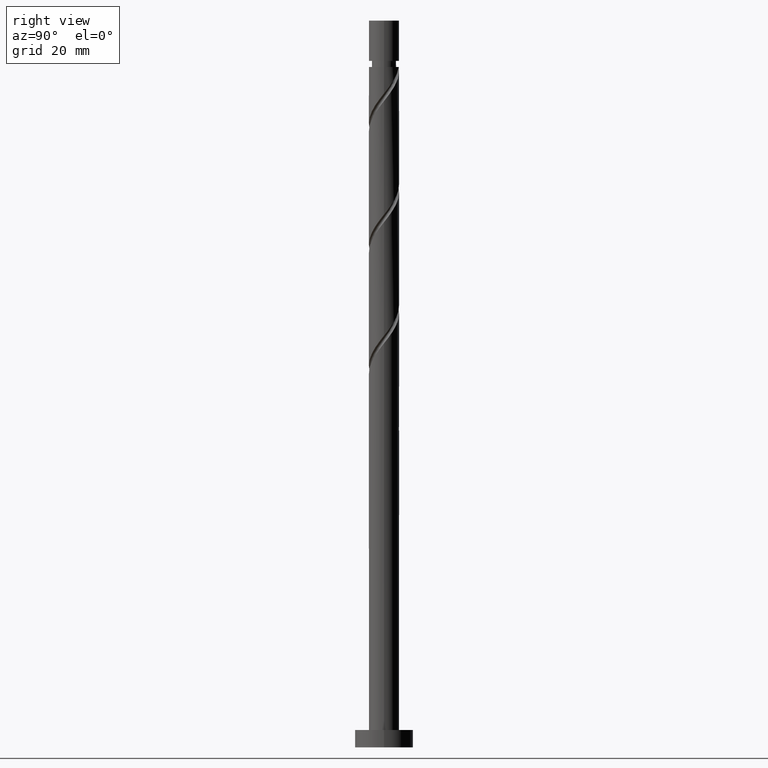
[diagram: clean part render]
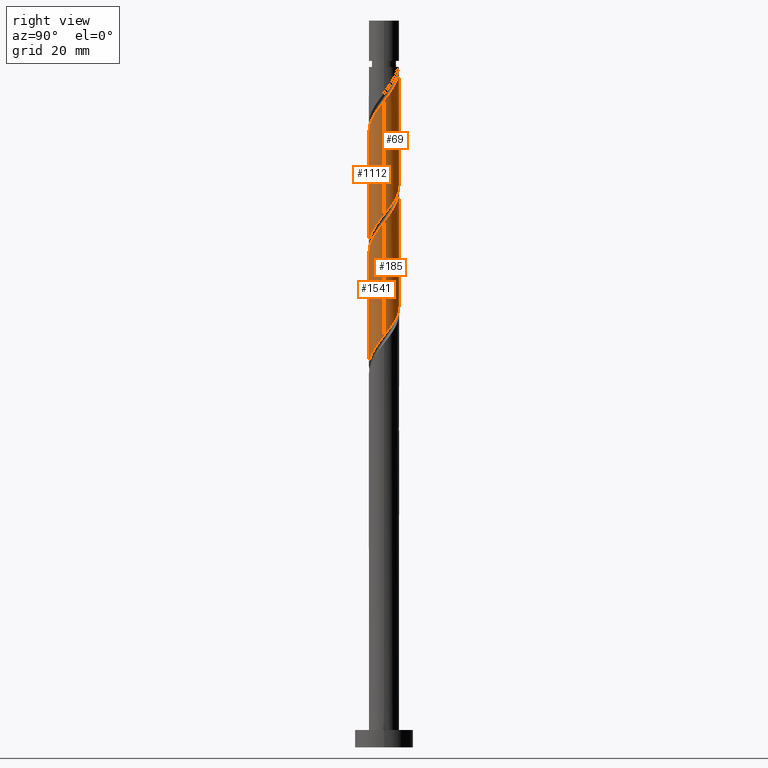
[diagram: same view with one multi-face feature highlighted, each face labeled with its STEP entity id]
A machine part, right view. The highlighted faces form ONE feature: a constant-radius fillet chain: 4 tangent blend faces with common blend radius 2.6 mm. The faces share edges in the B-rep.
Their STEP definitions:
[1] entity #1541 (Cylinder):
#6 = CARTESIAN_POINT ( 'NONE',  ( -0.9209570212423614510, -2.466052925254840211, 64.42336755237272428 ) ) ;
#29 = CARTESIAN_POINT ( 'NONE',  ( -0.1138299133485245890, -2.629947074745161206, 65.46503421903940989 ) ) ;
#85 = LINE ( 'NONE', #1428, #371 ) ;
#123 = CARTESIAN_POINT ( 'NONE',  ( -2.600000000000003197, -0.2613098319673984316, 80.23870301964363705 ) ) ;
#147 = CARTESIAN_POINT ( 'NONE',  ( 2.600000000000000533, -0.2613098319673972658, 70.48303208510179729 ) ) ;
#152 = CARTESIAN_POINT ( 'NONE',  ( -0.2953048731074930378, -2.583175377692926045, 84.73586755237273849 ) ) ;
#230 = EDGE_CURVE ( 'NONE', #615, #929, #1374, .T. ) ;
#232 = CARTESIAN_POINT ( 'NONE',  ( -2.600000000000000533, -0.1481317173607272497, 60.59018108305026118 ) ) ;
#234 = CARTESIAN_POINT ( 'NONE',  ( -2.600000000000004086, -2.578813678711384586E-15, 79.90439844423579530 ) ) ;
#240 = EDGE_LOOP ( 'NONE', ( #1517, #941, #571, #1574 ) ) ;
#254 = CARTESIAN_POINT ( 'NONE',  ( 2.194579422111510691, -1.453753770477755003, 88.38170088570608129 ) ) ;
#260 = CARTESIAN_POINT ( 'NONE',  ( 2.365491551376098567, -1.079096715020632313, 88.90253421903938147 ) ) ;
#265 = CARTESIAN_POINT ( 'NONE',  ( 1.079096715020629427, -2.365491551376095458, 67.02753421903936726 ) ) ;
#294 = CARTESIAN_POINT ( 'NONE',  ( 2.600000000000004086, 2.173999903564830327E-15, 90.32106511090246670 ) ) ;
#308 = EDGE_CURVE ( 'NONE', #1079, #357, #85, .T. ) ;
#321 = CARTESIAN_POINT ( 'NONE',  ( -2.600000000000000533, 3.268496406738868756E-15, 60.40066999384299606 ) ) ;
#357 = VERTEX_POINT ( 'NONE', #321 ) ;
#361 = CARTESIAN_POINT ( 'NONE',  ( 2.263408629347180678, -1.279445730227240396, 69.11086755237273849 ) ) ;
#364 = CARTESIAN_POINT ( 'NONE',  ( -2.060764333439525142, -1.637934439212121340, 82.13170088570605287 ) ) ;
#371 = VECTOR ( 'NONE', #693, 1000.000000000000000 ) ;
#388 = CARTESIAN_POINT ( 'NONE',  ( -2.536403680640683778, -0.7044396595635079583, 61.29836755237273138 ) ) ;
#409 = DIRECTION ( 'NONE',  ( -0.000000000000000000, -0.000000000000000000, -1.000000000000000000 ) ) ;
#481 = CARTESIAN_POINT ( 'NONE',  ( -0.7044396595635095126, -2.536403680640687330, 84.21503421903942410 ) ) ;
#489 = CARTESIAN_POINT ( 'NONE',  ( -1.637934439212119564, -2.060764333439522034, 63.38170088570605998 ) ) ;
#505 = CARTESIAN_POINT ( 'NONE',  ( -0.5173934672954428882, -2.548000000000000043, 64.94420088570603866 ) ) ;
#525 = CARTESIAN_POINT ( 'NONE',  ( -2.600000000000000533, 3.268496406738868756E-15, 60.40066999384299606 ) ) ;
#536 = FACE_OUTER_BOUND ( 'NONE', #240, .T. ) ;
#541 = CARTESIAN_POINT ( 'NONE',  ( 2.600000000000000089, 3.184081677783117698E-16, 125.0000000000000000 ) ) ;
#571 = ORIENTED_EDGE ( 'NONE', *, *, #308, .T. ) ;
#574 = EDGE_CURVE ( 'NONE', #929, #357, #918, .T. ) ;
#593 = CARTESIAN_POINT ( 'NONE',  ( 0.1138299133485235204, -2.629947074745163871, 85.25670088570603866 ) ) ;
#600 = CARTESIAN_POINT ( 'NONE',  ( -1.757259051958639962, -1.916256930661816238, 82.65253421903938147 ) ) ;
#615 = VERTEX_POINT ( 'NONE', #294 ) ;
#621 = VECTOR ( 'NONE', #409, 1000.000000000000000 ) ;
#693 = DIRECTION ( 'NONE',  ( -0.000000000000000000, -0.000000000000000000, -1.000000000000000000 ) ) ;
#708 = CARTESIAN_POINT ( 'NONE',  ( 0.9209570212423618951, -2.466052925254843764, 86.29836755237273849 ) ) ;
#718 = CARTESIAN_POINT ( 'NONE',  ( 0.2953048731074914834, -2.583175377692922048, 65.98586755237273849 ) ) ;
#723 = CARTESIAN_POINT ( 'NONE',  ( 0.5173934672954427771, -2.548000000000005372, 85.77753421903938147 ) ) ;
#824 = CARTESIAN_POINT ( 'NONE',  ( 1.916256930661816238, -1.757259051958639962, 87.86086755237275270 ) ) ;
#836 = CARTESIAN_POINT ( 'NONE',  ( 1.757259051958636631, -1.916256930661813795, 68.06920088570608129 ) ) ;
#842 = CARTESIAN_POINT ( 'NONE',  ( 1.279445730227241729, -2.263408629347185119, 86.81920088570608129 ) ) ;
#853 = CARTESIAN_POINT ( 'NONE',  ( 1.453753770477751894, -2.194579422111507583, 67.54836755237273849 ) ) ;
#856 = CARTESIAN_POINT ( 'NONE',  ( 1.637934439212120674, -2.060764333439525142, 87.34003421903938147 ) ) ;
#918 =( BOUNDED_CURVE ( )  B_SPLINE_CURVE ( 2, ( #1349, #147, #1450, #1085, #361, #1104, #836, #853, #265, #1329, #718, #29, #505, #6, #1204, #489, #1459, #979, #1478, #388, #1315, #232, #525 ),
 .UNSPECIFIED., .F., .T. ) 
 B_SPLINE_CURVE_WITH_KNOTS ( ( 3, 2, 2, 2, 2, 2, 2, 2, 2, 2, 2, 3 ),
 ( 0.8045322023138552492, 0.8125000000000000000, 0.8249999999999999556, 0.8375000000000000222, 0.8499999999999999778, 0.8625000000000000444, 0.8750000000000000000, 0.8874999999999999556, 0.9000000000000000222, 0.9124999999999999778, 0.9250000000000000444, 0.9295322023138551382 ),
 .UNSPECIFIED. ) 
 CURVE ( )  GEOMETRIC_REPRESENTATION_ITEM ( )  RATIONAL_B_SPLINE_CURVE ( ( 0.9039174447099340703, 0.9019565955404634794, 0.9090909090909118362, 0.8978984914501279002, 0.9090909090909118362, 0.8978984914501279002, 0.9090909090909118362, 0.8978984914501279002, 0.9090909090909118362, 0.8978984914501279002, 0.9090909090909118362, 0.8978984914501279002, 0.9090909090909118362, 0.8978984914501279002, 0.9090909090909118362, 0.8978984914501279002, 0.9090909090909118362, 0.8978984914501279002, 0.9090909090909118362, 0.8978984914501279002, 0.9090909090909118362, 0.9050328050005762570, 0.9039174447099340703 ) ) 
 REPRESENTATION_ITEM ( '' )  );
#929 = VERTEX_POINT ( 'NONE', #1068 ) ;
#941 = ORIENTED_EDGE ( 'NONE', *, *, #1328, .F. ) ;
#947 = CARTESIAN_POINT ( 'NONE',  ( -2.600000000000004086, -2.578813678711384586E-15, 79.90439844423579530 ) ) ;
#950 = CARTESIAN_POINT ( 'NONE',  ( 2.536403680640687330, -0.7044396595635097347, 89.42336755237273849 ) ) ;
#979 = CARTESIAN_POINT ( 'NONE',  ( -2.194579422111507583, -1.453753770477751894, 62.34003421903939568 ) ) ;
#983 = DIRECTION ( 'NONE',  ( -1.000000000000000000, 0.000000000000000000, 0.000000000000000000 ) ) ;
#1068 = CARTESIAN_POINT ( 'NONE',  ( 2.600000000000000533, 3.733282593018249783E-15, 70.81733666050965326 ) ) ;
#1076 = CARTESIAN_POINT ( 'NONE',  ( -2.548000000000005372, -0.5173934672954429992, 80.56920088570602445 ) ) ;
#1079 = VERTEX_POINT ( 'NONE', #947 ) ;
#1083 = CARTESIAN_POINT ( 'NONE',  ( -1.079096715020632313, -2.365491551376098567, 83.69420088570608129 ) ) ;
#1085 = CARTESIAN_POINT ( 'NONE',  ( 2.466052925254840211, -0.9209570212423616731, 69.63170088570605287 ) ) ;
#1104 = CARTESIAN_POINT ( 'NONE',  ( 2.060764333439522034, -1.637934439212119564, 68.59003421903939568 ) ) ;
#1191 = CARTESIAN_POINT ( 'NONE',  ( 2.583175377692926045, -0.2953048731074932043, 89.94420088570608129 ) ) ;
#1201 = CARTESIAN_POINT ( 'NONE',  ( -2.466052925254843764, -0.9209570212423618951, 81.09003421903940989 ) ) ;
#1204 = CARTESIAN_POINT ( 'NONE',  ( -1.279445730227240396, -2.263408629347180678, 63.90253421903939568 ) ) ;
#1210 = CARTESIAN_POINT ( 'NONE',  ( 2.600000000000003197, -0.1481317173607285820, 90.13155402169516606 ) ) ;
#1227 = CARTESIAN_POINT ( 'NONE',  ( -1.453753770477754337, -2.194579422111510691, 83.17336755237273849 ) ) ;
#1270 =( BOUNDED_CURVE ( )  B_SPLINE_CURVE ( 2, ( #234, #123, #1076, #1201, #1343, #364, #600, #1227, #1083, #481, #152, #593, #723, #708, #842, #856, #824, #254, #260, #950, #1191, #1210, #1447 ),
 .UNSPECIFIED., .F., .T. ) 
 B_SPLINE_CURVE_WITH_KNOTS ( ( 3, 2, 2, 2, 2, 2, 2, 2, 2, 2, 2, 3 ),
 ( 0.3045322023138553047, 0.3125000000000000000, 0.3249999999999999556, 0.3375000000000000222, 0.3499999999999999778, 0.3625000000000000444, 0.3750000000000000000, 0.3874999999999999556, 0.4000000000000000222, 0.4124999999999999778, 0.4250000000000000444, 0.4295322023138551382 ),
 .UNSPECIFIED. ) 
 CURVE ( )  GEOMETRIC_REPRESENTATION_ITEM ( )  RATIONAL_B_SPLINE_CURVE ( ( 0.9039174447099398435, 0.9019565955404693636, 0.9090909090909177204, 0.8978984914501337844, 0.9090909090909177204, 0.8978984914501337844, 0.9090909090909177204, 0.8978984914501337844, 0.9090909090909177204, 0.8978984914501337844, 0.9090909090909177204, 0.8978984914501337844, 0.9090909090909177204, 0.8978984914501337844, 0.9090909090909177204, 0.8978984914501337844, 0.9090909090909177204, 0.8978984914501337844, 0.9090909090909177204, 0.8978984914501337844, 0.9090909090909177204, 0.9050328050005822522, 0.9039174447099400656 ) ) 
 REPRESENTATION_ITEM ( '' )  );
#1271 = CYLINDRICAL_SURFACE ( 'NONE', #1406, 2.600000000000000089 ) ;
#1315 = CARTESIAN_POINT ( 'NONE',  ( -2.583175377692922048, -0.2953048731074915945, 60.77753421903939568 ) ) ;
#1328 = EDGE_CURVE ( 'NONE', #1079, #615, #1270, .T. ) ;
#1329 = CARTESIAN_POINT ( 'NONE',  ( 0.7044396595635075142, -2.536403680640683778, 66.50670088570605287 ) ) ;
#1343 = CARTESIAN_POINT ( 'NONE',  ( -2.263408629347185119, -1.279445730227241729, 81.61086755237273849 ) ) ;
#1349 = CARTESIAN_POINT ( 'NONE',  ( 2.600000000000000533, 3.733282593018249783E-15, 70.81733666050965326 ) ) ;
#1368 = DIRECTION ( 'NONE',  ( -0.000000000000000000, -0.000000000000000000, -1.000000000000000000 ) ) ;
#1374 = LINE ( 'NONE', #541, #621 ) ;
#1406 = AXIS2_PLACEMENT_3D ( 'NONE', #1514, #1368, #983 ) ;
#1428 = CARTESIAN_POINT ( 'NONE',  ( -2.600000000000000089, 0.000000000000000000, 125.0000000000000000 ) ) ;
#1447 = CARTESIAN_POINT ( 'NONE',  ( 2.600000000000004086, 2.173999903564830327E-15, 90.32106511090246670 ) ) ;
#1450 = CARTESIAN_POINT ( 'NONE',  ( 2.548000000000000043, -0.5173934672954429992, 70.15253421903938147 ) ) ;
#1459 = CARTESIAN_POINT ( 'NONE',  ( -1.916256930661813795, -1.757259051958636631, 62.86086755237271717 ) ) ;
#1478 = CARTESIAN_POINT ( 'NONE',  ( -2.365491551376095458, -1.079096715020629427, 61.81920088570605287 ) ) ;
#1514 = CARTESIAN_POINT ( 'NONE',  ( 0.000000000000000000, 0.000000000000000000, 125.0000000000000000 ) ) ;
#1517 = ORIENTED_EDGE ( 'NONE', *, *, #230, .F. ) ;
#1541 = ADVANCED_FACE ( 'NONE', ( #536 ), #1271, .T. ) ;
#1574 = ORIENTED_EDGE ( 'NONE', *, *, #574, .F. ) ;
[2] entity #185 (Cylinder):
#19 = CARTESIAN_POINT ( 'NONE',  ( 0.2953048731074934263, 2.583175377692926045, 95.15253421903938147 ) ) ;
#66 = CARTESIAN_POINT ( 'NONE',  ( 2.536403680640684222, 0.7044396595635074032, 71.71503421903938147 ) ) ;
#115 = CARTESIAN_POINT ( 'NONE',  ( 0.7044396595635097347, 2.536403680640687330, 94.63170088570606708 ) ) ;
#117 = VECTOR ( 'NONE', #1493, 1000.000000000000000 ) ;
#119 = CARTESIAN_POINT ( 'NONE',  ( -2.600000000000003642, -1.229434428222869075E-15, 100.7377317775691239 ) ) ;
#125 = CARTESIAN_POINT ( 'NONE',  ( 2.060764333439525586, 1.637934439212120674, 92.54836755237273849 ) ) ;
#137 = CARTESIAN_POINT ( 'NONE',  ( -2.583175377692926045, 0.2953048731074928157, 100.3608675523727527 ) ) ;
#155 = CARTESIAN_POINT ( 'NONE',  ( -2.600000000000000533, 3.268496406738868756E-15, 81.23400332717629624 ) ) ;
#183 = CARTESIAN_POINT ( 'NONE',  ( 0.1138299133485242420, 2.629947074745161206, 75.88170088570606708 ) ) ;
#185 = ADVANCED_FACE ( 'NONE', ( #1130 ), #1276, .T. ) ;
#190 = CARTESIAN_POINT ( 'NONE',  ( -0.7044396595635079583, 2.536403680640683778, 76.92336755237273849 ) ) ;
#230 = EDGE_CURVE ( 'NONE', #615, #929, #1374, .T. ) ;
#238 = CARTESIAN_POINT ( 'NONE',  ( -0.5173934672954424441, 2.548000000000005372, 96.19420088570606708 ) ) ;
#246 = CARTESIAN_POINT ( 'NONE',  ( 2.548000000000005372, 0.5173934672954426661, 90.98586755237272428 ) ) ;
#279 = EDGE_CURVE ( 'NONE', #1151, #929, #985, .T. ) ;
#291 = CARTESIAN_POINT ( 'NONE',  ( -2.600000000000000533, 0.2613098319673969328, 80.89969875176844027 ) ) ;
#294 = CARTESIAN_POINT ( 'NONE',  ( 2.600000000000004086, 2.173999903564830327E-15, 90.32106511090246670 ) ) ;
#298 = CARTESIAN_POINT ( 'NONE',  ( -2.060764333439522034, 1.637934439212118898, 79.00670088570608129 ) ) ;
#317 = CARTESIAN_POINT ( 'NONE',  ( 2.600000000000000533, 3.733282593018249783E-15, 70.81733666050965326 ) ) ;
#392 = ORIENTED_EDGE ( 'NONE', *, *, #230, .T. ) ;
#400 = CARTESIAN_POINT ( 'NONE',  ( -2.466052925254841544, 0.9209570212423614510, 80.04836755237272428 ) ) ;
#409 = DIRECTION ( 'NONE',  ( -0.000000000000000000, -0.000000000000000000, -1.000000000000000000 ) ) ;
#419 = CARTESIAN_POINT ( 'NONE',  ( -2.548000000000000043, 0.5173934672954427771, 80.56920088570602445 ) ) ;
#440 = VERTEX_POINT ( 'NONE', #1544 ) ;
#498 = CARTESIAN_POINT ( 'NONE',  ( -1.279445730227241729, 2.263408629347184675, 97.23586755237275270 ) ) ;
#507 = EDGE_CURVE ( 'NONE', #615, #440, #769, .T. ) ;
#541 = CARTESIAN_POINT ( 'NONE',  ( 2.600000000000000089, 3.184081677783117698E-16, 125.0000000000000000 ) ) ;
#547 = CARTESIAN_POINT ( 'NONE',  ( 2.194579422111507583, 1.453753770477751672, 72.75670088570606708 ) ) ;
#590 = CARTESIAN_POINT ( 'NONE',  ( 2.600000000000004530, 0.2613098319673927694, 90.65536968631029424 ) ) ;
#603 = CARTESIAN_POINT ( 'NONE',  ( 2.600000000000004086, 2.173999903564830327E-15, 90.32106511090246670 ) ) ;
#610 = CARTESIAN_POINT ( 'NONE',  ( -0.1138299133485232428, 2.629947074745163871, 95.67336755237272428 ) ) ;
#615 = VERTEX_POINT ( 'NONE', #294 ) ;
#621 = VECTOR ( 'NONE', #409, 1000.000000000000000 ) ;
#637 = CARTESIAN_POINT ( 'NONE',  ( -2.600000000000000089, 0.000000000000000000, 125.0000000000000000 ) ) ;
#647 = CARTESIAN_POINT ( 'NONE',  ( 1.916256930661814017, 1.757259051958636187, 73.27753421903940989 ) ) ;
#656 = CARTESIAN_POINT ( 'NONE',  ( 0.5173934672954432212, 2.548000000000000043, 75.36086755237273849 ) ) ;
#663 = CARTESIAN_POINT ( 'NONE',  ( 2.365491551376095458, 1.079096715020629205, 72.23586755237272428 ) ) ;
#706 = CARTESIAN_POINT ( 'NONE',  ( 2.263408629347185119, 1.279445730227241729, 92.02753421903942410 ) ) ;
#726 = CARTESIAN_POINT ( 'NONE',  ( -0.9209570212423621172, 2.466052925254843764, 96.71503421903942410 ) ) ;
#765 = CARTESIAN_POINT ( 'NONE',  ( -0.2953048731074917610, 2.583175377692921604, 76.40253421903940989 ) ) ;
#769 =( BOUNDED_CURVE ( )  B_SPLINE_CURVE ( 2, ( #603, #590, #246, #1222, #706, #125, #1215, #829, #1189, #115, #19, #610, #238, #726, #498, #1093, #971, #1444, #1469, #1194, #137, #1073, #119 ),
 .UNSPECIFIED., .F., .T. ) 
 B_SPLINE_CURVE_WITH_KNOTS ( ( 3, 2, 2, 2, 2, 2, 2, 2, 2, 2, 2, 3 ),
 ( 0.4295322023138551382, 0.4375000000000000000, 0.4499999999999999556, 0.4625000000000000222, 0.4749999999999999778, 0.4875000000000000444, 0.5000000000000000000, 0.5124999999999999556, 0.5250000000000000222, 0.5374999999999999778, 0.5500000000000000444, 0.5545322023138552492 ),
 .UNSPECIFIED. ) 
 CURVE ( )  GEOMETRIC_REPRESENTATION_ITEM ( )  RATIONAL_B_SPLINE_CURVE ( ( 0.9039174447099400656, 0.9019565955404691415, 0.9090909090909177204, 0.8978984914501337844, 0.9090909090909177204, 0.8978984914501337844, 0.9090909090909177204, 0.8978984914501337844, 0.9090909090909177204, 0.8978984914501337844, 0.9090909090909177204, 0.8978984914501337844, 0.9090909090909177204, 0.8978984914501337844, 0.9090909090909177204, 0.8978984914501337844, 0.9090909090909177204, 0.8978984914501337844, 0.9090909090909177204, 0.8978984914501337844, 0.9090909090909177204, 0.9050328050005820302, 0.9039174447099398435 ) ) 
 REPRESENTATION_ITEM ( '' )  );
#774 = CARTESIAN_POINT ( 'NONE',  ( -1.079096715020630093, 2.365491551376095458, 77.44420088570605287 ) ) ;
#829 = CARTESIAN_POINT ( 'NONE',  ( 1.453753770477755003, 2.194579422111510247, 93.59003421903936726 ) ) ;
#870 = CARTESIAN_POINT ( 'NONE',  ( -2.263408629347180678, 1.279445730227240174, 79.52753421903938147 ) ) ;
#891 = CARTESIAN_POINT ( 'NONE',  ( 2.583175377692922048, 0.2953048731074913169, 71.19420088570606708 ) ) ;
#901 = CARTESIAN_POINT ( 'NONE',  ( 1.279445730227240841, 2.263408629347180678, 74.31920088570606708 ) ) ;
#929 = VERTEX_POINT ( 'NONE', #1068 ) ;
#971 = CARTESIAN_POINT ( 'NONE',  ( -1.916256930661816238, 1.757259051958639962, 98.27753421903939568 ) ) ;
#976 = ORIENTED_EDGE ( 'NONE', *, *, #507, .F. ) ;
#984 = EDGE_LOOP ( 'NONE', ( #976, #392, #1412, #1463 ) ) ;
#985 =( BOUNDED_CURVE ( )  B_SPLINE_CURVE ( 2, ( #1005, #291, #419, #400, #870, #298, #1261, #1395, #774, #190, #765, #183, #656, #1253, #901, #1136, #647, #547, #663, #66, #891, #1523, #317 ),
 .UNSPECIFIED., .F., .T. ) 
 B_SPLINE_CURVE_WITH_KNOTS ( ( 3, 2, 2, 2, 2, 2, 2, 2, 2, 2, 2, 3 ),
 ( 0.6795322023138552492, 0.6875000000000000000, 0.6999999999999999556, 0.7125000000000000222, 0.7249999999999999778, 0.7375000000000000444, 0.7500000000000000000, 0.7624999999999999556, 0.7750000000000000222, 0.7874999999999999778, 0.8000000000000000444, 0.8045322023138552492 ),
 .UNSPECIFIED. ) 
 CURVE ( )  GEOMETRIC_REPRESENTATION_ITEM ( )  RATIONAL_B_SPLINE_CURVE ( ( 0.9039174447099340703, 0.9019565955404634794, 0.9090909090909118362, 0.8978984914501279002, 0.9090909090909118362, 0.8978984914501279002, 0.9090909090909118362, 0.8978984914501279002, 0.9090909090909118362, 0.8978984914501279002, 0.9090909090909118362, 0.8978984914501279002, 0.9090909090909118362, 0.8978984914501279002, 0.9090909090909118362, 0.8978984914501279002, 0.9090909090909118362, 0.8978984914501279002, 0.9090909090909118362, 0.8978984914501279002, 0.9090909090909118362, 0.9050328050005761460, 0.9039174447099340703 ) ) 
 REPRESENTATION_ITEM ( '' )  );
#993 = DIRECTION ( 'NONE',  ( -0.000000000000000000, -0.000000000000000000, -1.000000000000000000 ) ) ;
#1005 = CARTESIAN_POINT ( 'NONE',  ( -2.600000000000000533, 3.268496406738868756E-15, 81.23400332717629624 ) ) ;
#1068 = CARTESIAN_POINT ( 'NONE',  ( 2.600000000000000533, 3.733282593018249783E-15, 70.81733666050965326 ) ) ;
#1073 = CARTESIAN_POINT ( 'NONE',  ( -2.600000000000004086, 0.1481317173607245297, 100.5482206883618659 ) ) ;
#1093 = CARTESIAN_POINT ( 'NONE',  ( -1.637934439212121340, 2.060764333439525142, 97.75670088570605287 ) ) ;
#1130 = FACE_OUTER_BOUND ( 'NONE', #984, .T. ) ;
#1136 = CARTESIAN_POINT ( 'NONE',  ( 1.637934439212119564, 2.060764333439522034, 73.79836755237273849 ) ) ;
#1151 = VERTEX_POINT ( 'NONE', #155 ) ;
#1189 = CARTESIAN_POINT ( 'NONE',  ( 1.079096715020632313, 2.365491551376098567, 94.11086755237275270 ) ) ;
#1194 = CARTESIAN_POINT ( 'NONE',  ( -2.536403680640687330, 0.7044396595635091796, 99.84003421903943831 ) ) ;
#1215 = CARTESIAN_POINT ( 'NONE',  ( 1.757259051958640184, 1.916256930661815572, 93.06920088570606708 ) ) ;
#1222 = CARTESIAN_POINT ( 'NONE',  ( 2.466052925254843764, 0.9209570212423618951, 91.50670088570608129 ) ) ;
#1253 = CARTESIAN_POINT ( 'NONE',  ( 0.9209570212423616731, 2.466052925254840211, 74.84003421903938147 ) ) ;
#1261 = CARTESIAN_POINT ( 'NONE',  ( -1.757259051958636853, 1.916256930661813573, 78.48586755237273849 ) ) ;
#1263 = LINE ( 'NONE', #637, #117 ) ;
#1269 = DIRECTION ( 'NONE',  ( -1.000000000000000000, 0.000000000000000000, 0.000000000000000000 ) ) ;
#1276 = CYLINDRICAL_SURFACE ( 'NONE', #1287, 2.600000000000000089 ) ;
#1287 = AXIS2_PLACEMENT_3D ( 'NONE', #1367, #993, #1269 ) ;
#1367 = CARTESIAN_POINT ( 'NONE',  ( 0.000000000000000000, 0.000000000000000000, 125.0000000000000000 ) ) ;
#1374 = LINE ( 'NONE', #541, #621 ) ;
#1395 = CARTESIAN_POINT ( 'NONE',  ( -1.453753770477752338, 2.194579422111507583, 77.96503421903940989 ) ) ;
#1412 = ORIENTED_EDGE ( 'NONE', *, *, #279, .F. ) ;
#1444 = CARTESIAN_POINT ( 'NONE',  ( -2.194579422111511580, 1.453753770477754337, 98.79836755237273849 ) ) ;
#1448 = EDGE_CURVE ( 'NONE', #440, #1151, #1263, .T. ) ;
#1463 = ORIENTED_EDGE ( 'NONE', *, *, #1448, .F. ) ;
#1469 = CARTESIAN_POINT ( 'NONE',  ( -2.365491551376098567, 1.079096715020631869, 99.31920088570606708 ) ) ;
#1493 = DIRECTION ( 'NONE',  ( -0.000000000000000000, -0.000000000000000000, -1.000000000000000000 ) ) ;
#1523 = CARTESIAN_POINT ( 'NONE',  ( 2.600000000000000533, 0.1481317173607233639, 71.00684774971692548 ) ) ;
#1544 = CARTESIAN_POINT ( 'NONE',  ( -2.600000000000003642, -1.229434428222869075E-15, 100.7377317775691239 ) ) ;
[3] entity #1112 (Cylinder):
#13 = CARTESIAN_POINT ( 'NONE',  ( 0.9209570212423618951, -2.466052925254843764, 107.1317008857060813 ) ) ;
#18 = AXIS2_PLACEMENT_3D ( 'NONE', #1193, #504, #1231 ) ;
#25 = CARTESIAN_POINT ( 'NONE',  ( 2.536403680640687330, -0.7044396595635097347, 110.2567008857060671 ) ) ;
#27 = FACE_OUTER_BOUND ( 'NONE', #1325, .T. ) ;
#67 = CARTESIAN_POINT ( 'NONE',  ( -1.279445730227240396, -2.263408629347180678, 84.73586755237272428 ) ) ;
#73 = CARTESIAN_POINT ( 'NONE',  ( 0.2953048731074914834, -2.583175377692922048, 86.81920088570606708 ) ) ;
#117 = VECTOR ( 'NONE', #1493, 1000.000000000000000 ) ;
#141 = ORIENTED_EDGE ( 'NONE', *, *, #825, .F. ) ;
#142 = CARTESIAN_POINT ( 'NONE',  ( 2.194579422111510691, -1.453753770477755003, 109.2150342190393815 ) ) ;
#155 = CARTESIAN_POINT ( 'NONE',  ( -2.600000000000000533, 3.268496406738868756E-15, 81.23400332717629624 ) ) ;
#161 = CARTESIAN_POINT ( 'NONE',  ( 2.263408629347180678, -1.279445730227240396, 89.94420088570606708 ) ) ;
#177 = CARTESIAN_POINT ( 'NONE',  ( 2.466052925254840211, -0.9209570212423616731, 90.46503421903942410 ) ) ;
#193 = CARTESIAN_POINT ( 'NONE',  ( 2.060764333439522034, -1.637934439212119564, 89.42336755237273849 ) ) ;
#242 = CARTESIAN_POINT ( 'NONE',  ( -2.466052925254843764, -0.9209570212423618951, 101.9233675523727243 ) ) ;
#276 = CARTESIAN_POINT ( 'NONE',  ( -1.637934439212119564, -2.060764333439522034, 84.21503421903942410 ) ) ;
#303 = CARTESIAN_POINT ( 'NONE',  ( 1.757259051958636631, -1.916256930661813795, 88.90253421903940989 ) ) ;
#330 = ORIENTED_EDGE ( 'NONE', *, *, #1382, .F. ) ;
#353 = CARTESIAN_POINT ( 'NONE',  ( -1.757259051958639962, -1.916256930661816238, 103.4858675523727527 ) ) ;
#422 = CARTESIAN_POINT ( 'NONE',  ( 2.600000000000000533, 3.733282593018249783E-15, 91.65066999384299606 ) ) ;
#424 = CARTESIAN_POINT ( 'NONE',  ( -2.600000000000000533, -0.1481317173607236137, 81.42351441638359688 ) ) ;
#430 = CARTESIAN_POINT ( 'NONE',  ( -2.365491551376095458, -1.079096715020629427, 82.65253421903939568 ) ) ;
#440 = VERTEX_POINT ( 'NONE', #1544 ) ;
#453 =( BOUNDED_CURVE ( )  B_SPLINE_CURVE ( 2, ( #885, #1022, #1116, #177, #161, #193, #303, #1264, #1369, #1030, #73, #659, #1139, #751, #67, #276, #544, #552, #430, #1516, #1125, #424, #897 ),
 .UNSPECIFIED., .F., .T. ) 
 B_SPLINE_CURVE_WITH_KNOTS ( ( 3, 2, 2, 2, 2, 2, 2, 2, 2, 2, 2, 3 ),
 ( 0.5545322023138550271, 0.5625000000000000000, 0.5749999999999999556, 0.5875000000000000222, 0.5999999999999999778, 0.6125000000000000444, 0.6250000000000000000, 0.6374999999999999556, 0.6500000000000000222, 0.6624999999999999778, 0.6750000000000000444, 0.6795322023138552492 ),
 .UNSPECIFIED. ) 
 CURVE ( )  GEOMETRIC_REPRESENTATION_ITEM ( )  RATIONAL_B_SPLINE_CURVE ( ( 0.9039174447099341814, 0.9019565955404631463, 0.9090909090909118362, 0.8978984914501279002, 0.9090909090909118362, 0.8978984914501279002, 0.9090909090909118362, 0.8978984914501279002, 0.9090909090909118362, 0.8978984914501279002, 0.9090909090909118362, 0.8978984914501279002, 0.9090909090909118362, 0.8978984914501279002, 0.9090909090909118362, 0.8978984914501279002, 0.9090909090909118362, 0.8978984914501279002, 0.9090909090909118362, 0.8978984914501279002, 0.9090909090909118362, 0.9050328050005761460, 0.9039174447099340703 ) ) 
 REPRESENTATION_ITEM ( '' )  );
#486 = CARTESIAN_POINT ( 'NONE',  ( -2.263408629347185119, -1.279445730227241729, 102.4442008857060529 ) ) ;
#494 = CARTESIAN_POINT ( 'NONE',  ( -0.2953048731074930378, -2.583175377692926045, 105.5692008857060813 ) ) ;
#502 = CARTESIAN_POINT ( 'NONE',  ( 2.583175377692926045, -0.2953048731074932043, 110.7775342190393957 ) ) ;
#504 = DIRECTION ( 'NONE',  ( -0.000000000000000000, -0.000000000000000000, -1.000000000000000000 ) ) ;
#510 = CARTESIAN_POINT ( 'NONE',  ( -1.079096715020632313, -2.365491551376098567, 104.5275342190394099 ) ) ;
#544 = CARTESIAN_POINT ( 'NONE',  ( -1.916256930661813795, -1.757259051958636631, 83.69420088570608129 ) ) ;
#552 = CARTESIAN_POINT ( 'NONE',  ( -2.194579422111507583, -1.453753770477751894, 83.17336755237272428 ) ) ;
#616 = CARTESIAN_POINT ( 'NONE',  ( 2.365491551376098567, -1.079096715020632313, 109.7358675523727243 ) ) ;
#637 = CARTESIAN_POINT ( 'NONE',  ( -2.600000000000000089, 0.000000000000000000, 125.0000000000000000 ) ) ;
#659 = CARTESIAN_POINT ( 'NONE',  ( -0.1138299133485245890, -2.629947074745161206, 86.29836755237273849 ) ) ;
#715 = CARTESIAN_POINT ( 'NONE',  ( -1.453753770477754337, -2.194579422111510691, 104.0067008857060529 ) ) ;
#730 = CARTESIAN_POINT ( 'NONE',  ( -2.060764333439525142, -1.637934439212121340, 102.9650342190394099 ) ) ;
#751 = CARTESIAN_POINT ( 'NONE',  ( -0.9209570212423614510, -2.466052925254840211, 85.25670088570603866 ) ) ;
#759 = LINE ( 'NONE', #872, #1228 ) ;
#825 = EDGE_CURVE ( 'NONE', #1422, #1151, #453, .T. ) ;
#832 = CARTESIAN_POINT ( 'NONE',  ( -2.600000000000003642, -1.229434428222869075E-15, 100.7377317775691239 ) ) ;
#835 = CYLINDRICAL_SURFACE ( 'NONE', #18, 2.600000000000000089 ) ;
#850 = CARTESIAN_POINT ( 'NONE',  ( 1.637934439212120674, -2.060764333439525142, 108.1733675523727527 ) ) ;
#855 = VERTEX_POINT ( 'NONE', #913 ) ;
#872 = CARTESIAN_POINT ( 'NONE',  ( 2.600000000000000089, 3.184081677783117698E-16, 125.0000000000000000 ) ) ;
#885 = CARTESIAN_POINT ( 'NONE',  ( 2.600000000000000533, 3.733282593018249783E-15, 91.65066999384301027 ) ) ;
#897 = CARTESIAN_POINT ( 'NONE',  ( -2.600000000000000533, 3.268496406738868756E-15, 81.23400332717629624 ) ) ;
#913 = CARTESIAN_POINT ( 'NONE',  ( 2.600000000000003642, 8.546068586427260305E-16, 111.1543984442357953 ) ) ;
#955 = CARTESIAN_POINT ( 'NONE',  ( -0.7044396595635095126, -2.536403680640687330, 105.0483675523727385 ) ) ;
#966 = CARTESIAN_POINT ( 'NONE',  ( 1.279445730227241729, -2.263408629347185119, 107.6525342190394099 ) ) ;
#975 = CARTESIAN_POINT ( 'NONE',  ( 2.600000000000005862, -0.1481317173607140936, 110.9648873550285373 ) ) ;
#1022 = CARTESIAN_POINT ( 'NONE',  ( 2.600000000000001865, -0.2613098319673901049, 91.31636541843518273 ) ) ;
#1030 = CARTESIAN_POINT ( 'NONE',  ( 0.7044396595635075142, -2.536403680640683778, 87.34003421903939568 ) ) ;
#1098 = ORIENTED_EDGE ( 'NONE', *, *, #1448, .T. ) ;
#1099 = CARTESIAN_POINT ( 'NONE',  ( 0.5173934672954427771, -2.548000000000005372, 106.6108675523727385 ) ) ;
#1112 = ADVANCED_FACE ( 'NONE', ( #27 ), #835, .T. ) ;
#1116 = CARTESIAN_POINT ( 'NONE',  ( 2.548000000000000043, -0.5173934672954429992, 90.98586755237269585 ) ) ;
#1125 = CARTESIAN_POINT ( 'NONE',  ( -2.583175377692922048, -0.2953048731074915945, 81.61086755237273849 ) ) ;
#1139 = CARTESIAN_POINT ( 'NONE',  ( -0.5173934672954428882, -2.548000000000000043, 85.77753421903938147 ) ) ;
#1151 = VERTEX_POINT ( 'NONE', #155 ) ;
#1193 = CARTESIAN_POINT ( 'NONE',  ( 0.000000000000000000, 0.000000000000000000, 125.0000000000000000 ) ) ;
#1219 = CARTESIAN_POINT ( 'NONE',  ( 1.916256930661816238, -1.757259051958639962, 108.6942008857060671 ) ) ;
#1228 = VECTOR ( 'NONE', #1502, 1000.000000000000000 ) ;
#1231 = DIRECTION ( 'NONE',  ( -1.000000000000000000, 0.000000000000000000, 0.000000000000000000 ) ) ;
#1246 = ORIENTED_EDGE ( 'NONE', *, *, #1420, .F. ) ;
#1263 = LINE ( 'NONE', #637, #117 ) ;
#1264 = CARTESIAN_POINT ( 'NONE',  ( 1.453753770477751894, -2.194579422111507583, 88.38170088570608129 ) ) ;
#1318 =( BOUNDED_CURVE ( )  B_SPLINE_CURVE ( 2, ( #832, #1442, #1326, #242, #486, #730, #353, #715, #510, #955, #494, #1456, #1099, #13, #966, #850, #1219, #142, #616, #25, #502, #975, #1475 ),
 .UNSPECIFIED., .F., .T. ) 
 B_SPLINE_CURVE_WITH_KNOTS ( ( 3, 2, 2, 2, 2, 2, 2, 2, 2, 2, 2, 3 ),
 ( 0.5545322023138552492, 0.5625000000000000000, 0.5749999999999999556, 0.5875000000000000222, 0.5999999999999999778, 0.6125000000000000444, 0.6250000000000000000, 0.6374999999999999556, 0.6500000000000000222, 0.6624999999999999778, 0.6750000000000000444, 0.6795322023138555823 ),
 .UNSPECIFIED. ) 
 CURVE ( )  GEOMETRIC_REPRESENTATION_ITEM ( )  RATIONAL_B_SPLINE_CURVE ( ( 0.9039174447099398435, 0.9019565955404693636, 0.9090909090909177204, 0.8978984914501337844, 0.9090909090909177204, 0.8978984914501337844, 0.9090909090909177204, 0.8978984914501337844, 0.9090909090909177204, 0.8978984914501337844, 0.9090909090909177204, 0.8978984914501337844, 0.9090909090909177204, 0.8978984914501337844, 0.9090909090909177204, 0.8978984914501337844, 0.9090909090909177204, 0.8978984914501337844, 0.9090909090909177204, 0.8978984914501337844, 0.9090909090909177204, 0.9050328050005818081, 0.9039174447099397325 ) ) 
 REPRESENTATION_ITEM ( '' )  );
#1325 = EDGE_LOOP ( 'NONE', ( #1246, #330, #1098, #141 ) ) ;
#1326 = CARTESIAN_POINT ( 'NONE',  ( -2.548000000000005372, -0.5173934672954429992, 101.4025342190394099 ) ) ;
#1369 = CARTESIAN_POINT ( 'NONE',  ( 1.079096715020629427, -2.365491551376095458, 87.86086755237272428 ) ) ;
#1382 = EDGE_CURVE ( 'NONE', #440, #855, #1318, .T. ) ;
#1420 = EDGE_CURVE ( 'NONE', #855, #1422, #759, .T. ) ;
#1422 = VERTEX_POINT ( 'NONE', #422 ) ;
#1442 = CARTESIAN_POINT ( 'NONE',  ( -2.600000000000003197, -0.2613098319673966552, 101.0720363529769656 ) ) ;
#1448 = EDGE_CURVE ( 'NONE', #440, #1151, #1263, .T. ) ;
#1456 = CARTESIAN_POINT ( 'NONE',  ( 0.1138299133485235204, -2.629947074745163871, 106.0900342190393957 ) ) ;
#1475 = CARTESIAN_POINT ( 'NONE',  ( 2.600000000000003642, 8.546068586427260305E-16, 111.1543984442357953 ) ) ;
#1493 = DIRECTION ( 'NONE',  ( -0.000000000000000000, -0.000000000000000000, -1.000000000000000000 ) ) ;
#1502 = DIRECTION ( 'NONE',  ( -0.000000000000000000, -0.000000000000000000, -1.000000000000000000 ) ) ;
#1516 = CARTESIAN_POINT ( 'NONE',  ( -2.536403680640683778, -0.7044396595635079583, 82.13170088570606708 ) ) ;
#1544 = CARTESIAN_POINT ( 'NONE',  ( -2.600000000000003642, -1.229434428222869075E-15, 100.7377317775691239 ) ) ;
[4] entity #69 (Cylinder):
#10 = CARTESIAN_POINT ( 'NONE',  ( -1.453753770477752338, 2.194579422111507583, 98.79836755237271007 ) ) ;
#69 = ADVANCED_FACE ( 'NONE', ( #1218 ), #948, .T. ) ;
#88 = EDGE_CURVE ( 'NONE', #284, #535, #981, .T. ) ;
#105 = CARTESIAN_POINT ( 'NONE',  ( 1.757259051958640184, 1.916256930661815572, 113.9025342190394241 ) ) ;
#121 = CARTESIAN_POINT ( 'NONE',  ( -0.7044396595635079583, 2.536403680640683778, 97.75670088570608129 ) ) ;
#127 = CARTESIAN_POINT ( 'NONE',  ( 2.536403680640684222, 0.7044396595635074032, 92.54836755237275270 ) ) ;
#159 = CARTESIAN_POINT ( 'NONE',  ( -2.263408629347180678, 1.279445730227240174, 100.3608675523727385 ) ) ;
#168 = EDGE_CURVE ( 'NONE', #535, #1422, #282, .T. ) ;
#237 = DIRECTION ( 'NONE',  ( -0.000000000000000000, -0.000000000000000000, -1.000000000000000000 ) ) ;
#250 = CARTESIAN_POINT ( 'NONE',  ( 1.916256930661814017, 1.757259051958636187, 94.11086755237272428 ) ) ;
#267 = DIRECTION ( 'NONE',  ( -1.000000000000000000, 0.000000000000000000, 0.000000000000000000 ) ) ;
#282 =( BOUNDED_CURVE ( )  B_SPLINE_CURVE ( 2, ( #747, #384, #1236, #1197, #159, #838, #501, #10, #1095, #121, #1332, #1568, #1473, #491, #830, #1323, #250, #720, #1207, #127, #962, #1383, #1500 ),
 .UNSPECIFIED., .F., .T. ) 
 B_SPLINE_CURVE_WITH_KNOTS ( ( 3, 2, 2, 2, 2, 2, 2, 2, 2, 2, 2, 3 ),
 ( 0.4295322023138552492, 0.4375000000000000000, 0.4500000000000000111, 0.4625000000000000222, 0.4749999999999999778, 0.4874999999999999889, 0.5000000000000000000, 0.5124999999999999556, 0.5250000000000000222, 0.5374999999999999778, 0.5500000000000000444, 0.5545322023138550271 ),
 .UNSPECIFIED. ) 
 CURVE ( )  GEOMETRIC_REPRESENTATION_ITEM ( )  RATIONAL_B_SPLINE_CURVE ( ( 0.9039174447099341814, 0.9019565955404635904, 0.9090909090909118362, 0.8978984914501279002, 0.9090909090909118362, 0.8978984914501279002, 0.9090909090909118362, 0.8978984914501279002, 0.9090909090909118362, 0.8978984914501279002, 0.9090909090909118362, 0.8978984914501279002, 0.9090909090909118362, 0.8978984914501279002, 0.9090909090909118362, 0.8978984914501279002, 0.9090909090909118362, 0.8978984914501279002, 0.9090909090909118362, 0.8978984914501279002, 0.9090909090909118362, 0.9050328050005764791, 0.9039174447099341814 ) ) 
 REPRESENTATION_ITEM ( '' )  );
#284 = VERTEX_POINT ( 'NONE', #1159 ) ;
#343 = CARTESIAN_POINT ( 'NONE',  ( -0.1138299133485342896, 2.629947074745166091, 116.5067008857060529 ) ) ;
#384 = CARTESIAN_POINT ( 'NONE',  ( -2.600000000000000089, 0.2613098319673980430, 101.7330320851017831 ) ) ;
#402 = EDGE_LOOP ( 'NONE', ( #749, #1081, #1015, #613, #740 ) ) ;
#420 = VECTOR ( 'NONE', #1360, 1000.000000000000000 ) ;
#422 = CARTESIAN_POINT ( 'NONE',  ( 2.600000000000000533, 3.733282593018249783E-15, 91.65066999384299606 ) ) ;
#441 =( BOUNDED_CURVE ( )  B_SPLINE_CURVE ( 2, ( #606, #492, #1198, #591, #808, #1455, #105, #840, #721, #1561, #1075, #343, #964 ),
 .UNSPECIFIED., .F., .T. ) 
 B_SPLINE_CURVE_WITH_KNOTS ( ( 3, 2, 2, 2, 2, 2, 3 ),
 ( 0.6795322023138555823, 0.6875000000000000000, 0.7000000000000000666, 0.7125000000000001332, 0.7250000000000001998, 0.7375000000000002665, 0.7500000000000003331 ),
 .UNSPECIFIED. ) 
 CURVE ( )  GEOMETRIC_REPRESENTATION_ITEM ( )  RATIONAL_B_SPLINE_CURVE ( ( 0.9039174447099397325, 0.9019565955404695856, 0.9090909090909177204, 0.8978984914501337844, 0.9090909090909177204, 0.8978984914501337844, 0.9090909090909177204, 0.8978984914501337844, 0.9090909090909177204, 0.8978984914501337844, 0.9090909090909177204, 0.8978984914501334513, 0.9090909090909180534 ) ) 
 REPRESENTATION_ITEM ( '' )  );
#491 = CARTESIAN_POINT ( 'NONE',  ( 0.9209570212423616731, 2.466052925254840211, 95.67336755237273849 ) ) ;
#492 = CARTESIAN_POINT ( 'NONE',  ( 2.600000000000000977, 0.2613098319674070913, 111.4887030196436655 ) ) ;
#501 = CARTESIAN_POINT ( 'NONE',  ( -1.757259051958636853, 1.916256930661813573, 99.31920088570605287 ) ) ;
#535 = VERTEX_POINT ( 'NONE', #1322 ) ;
#591 = CARTESIAN_POINT ( 'NONE',  ( 2.466052925254843764, 0.9209570212423618951, 112.3400342190394099 ) ) ;
#606 = CARTESIAN_POINT ( 'NONE',  ( 2.600000000000003642, 8.546068586427260305E-16, 111.1543984442357953 ) ) ;
#613 = ORIENTED_EDGE ( 'NONE', *, *, #88, .F. ) ;
#625 = CARTESIAN_POINT ( 'NONE',  ( 0.000000000000000000, 0.000000000000000000, 125.0000000000000000 ) ) ;
#674 = AXIS2_PLACEMENT_3D ( 'NONE', #710, #237, #1467 ) ;
#710 = CARTESIAN_POINT ( 'NONE',  ( 0.000000000000000000, 0.000000000000000000, 117.0275342190393815 ) ) ;
#720 = CARTESIAN_POINT ( 'NONE',  ( 2.194579422111507583, 1.453753770477751672, 93.59003421903939568 ) ) ;
#721 = CARTESIAN_POINT ( 'NONE',  ( 1.079096715020632313, 2.365491551376098567, 114.9442008857060529 ) ) ;
#740 = ORIENTED_EDGE ( 'NONE', *, *, #1065, .T. ) ;
#747 = CARTESIAN_POINT ( 'NONE',  ( -2.600000000000000533, -1.679227511719051496E-15, 102.0673366605096390 ) ) ;
#749 = ORIENTED_EDGE ( 'NONE', *, *, #958, .F. ) ;
#759 = LINE ( 'NONE', #872, #1228 ) ;
#792 = CIRCLE ( 'NONE', #674, 2.599999999999998312 ) ;
#808 = CARTESIAN_POINT ( 'NONE',  ( 2.263408629347185119, 1.279445730227241729, 112.8608675523727243 ) ) ;
#830 = CARTESIAN_POINT ( 'NONE',  ( 1.279445730227240841, 2.263408629347180678, 95.15253421903939568 ) ) ;
#838 = CARTESIAN_POINT ( 'NONE',  ( -2.060764333439522034, 1.637934439212118898, 99.84003421903942410 ) ) ;
#840 = CARTESIAN_POINT ( 'NONE',  ( 1.453753770477755003, 2.194579422111510247, 114.4233675523727243 ) ) ;
#855 = VERTEX_POINT ( 'NONE', #913 ) ;
#872 = CARTESIAN_POINT ( 'NONE',  ( 2.600000000000000089, 3.184081677783117698E-16, 125.0000000000000000 ) ) ;
#913 = CARTESIAN_POINT ( 'NONE',  ( 2.600000000000003642, 8.546068586427260305E-16, 111.1543984442357953 ) ) ;
#948 = CYLINDRICAL_SURFACE ( 'NONE', #1361, 2.600000000000000089 ) ;
#953 = CARTESIAN_POINT ( 'NONE',  ( -2.600000000000000089, 0.000000000000000000, 125.0000000000000000 ) ) ;
#958 = EDGE_CURVE ( 'NONE', #855, #1131, #441, .T. ) ;
#962 = CARTESIAN_POINT ( 'NONE',  ( 2.583175377692922048, 0.2953048731074913169, 92.02753421903940989 ) ) ;
#964 = CARTESIAN_POINT ( 'NONE',  ( -0.5173934672954415559, 2.547999999999996490, 117.0275342190393530 ) ) ;
#981 = LINE ( 'NONE', #953, #420 ) ;
#1015 = ORIENTED_EDGE ( 'NONE', *, *, #168, .F. ) ;
#1065 = EDGE_CURVE ( 'NONE', #284, #1131, #792, .T. ) ;
#1075 = CARTESIAN_POINT ( 'NONE',  ( 0.2953048731074934263, 2.583175377692926045, 115.9858675523727385 ) ) ;
#1081 = ORIENTED_EDGE ( 'NONE', *, *, #1420, .T. ) ;
#1095 = CARTESIAN_POINT ( 'NONE',  ( -1.079096715020630093, 2.365491551376095458, 98.27753421903938147 ) ) ;
#1131 = VERTEX_POINT ( 'NONE', #1477 ) ;
#1159 = CARTESIAN_POINT ( 'NONE',  ( -2.599999999999998312, 0.000000000000000000, 117.0275342190393815 ) ) ;
#1197 = CARTESIAN_POINT ( 'NONE',  ( -2.466052925254841544, 0.9209570212423614510, 100.8817008857060671 ) ) ;
#1198 = CARTESIAN_POINT ( 'NONE',  ( 2.548000000000005372, 0.5173934672954426661, 111.8192008857060813 ) ) ;
#1207 = CARTESIAN_POINT ( 'NONE',  ( 2.365491551376095458, 1.079096715020629205, 93.06920088570606708 ) ) ;
#1218 = FACE_OUTER_BOUND ( 'NONE', #402, .T. ) ;
#1228 = VECTOR ( 'NONE', #1502, 1000.000000000000000 ) ;
#1236 = CARTESIAN_POINT ( 'NONE',  ( -2.548000000000000043, 0.5173934672954427771, 101.4025342190393815 ) ) ;
#1322 = CARTESIAN_POINT ( 'NONE',  ( -2.600000000000000533, -1.679227511719051496E-15, 102.0673366605096390 ) ) ;
#1323 = CARTESIAN_POINT ( 'NONE',  ( 1.637934439212119564, 2.060764333439522034, 94.63170088570605287 ) ) ;
#1332 = CARTESIAN_POINT ( 'NONE',  ( -0.2953048731074917610, 2.583175377692921604, 97.23586755237273849 ) ) ;
#1351 = DIRECTION ( 'NONE',  ( -0.000000000000000000, -0.000000000000000000, -1.000000000000000000 ) ) ;
#1360 = DIRECTION ( 'NONE',  ( -0.000000000000000000, -0.000000000000000000, -1.000000000000000000 ) ) ;
#1361 = AXIS2_PLACEMENT_3D ( 'NONE', #625, #1351, #267 ) ;
#1383 = CARTESIAN_POINT ( 'NONE',  ( 2.599999999999999645, 0.1481317173607305526, 91.84018108305026828 ) ) ;
#1420 = EDGE_CURVE ( 'NONE', #855, #1422, #759, .T. ) ;
#1422 = VERTEX_POINT ( 'NONE', #422 ) ;
#1455 = CARTESIAN_POINT ( 'NONE',  ( 2.060764333439525586, 1.637934439212120674, 113.3817008857060813 ) ) ;
#1467 = DIRECTION ( 'NONE',  ( -1.000000000000000000, 0.000000000000000000, 0.000000000000000000 ) ) ;
#1473 = CARTESIAN_POINT ( 'NONE',  ( 0.5173934672954432212, 2.548000000000000043, 96.19420088570605287 ) ) ;
#1477 = CARTESIAN_POINT ( 'NONE',  ( -0.5173934672954415559, 2.547999999999996490, 117.0275342190393530 ) ) ;
#1500 = CARTESIAN_POINT ( 'NONE',  ( 2.600000000000000533, 3.733282593018249783E-15, 91.65066999384301027 ) ) ;
#1502 = DIRECTION ( 'NONE',  ( -0.000000000000000000, -0.000000000000000000, -1.000000000000000000 ) ) ;
#1561 = CARTESIAN_POINT ( 'NONE',  ( 0.7044396595635097347, 2.536403680640687330, 115.4650342190394099 ) ) ;
#1568 = CARTESIAN_POINT ( 'NONE',  ( 0.1138299133485242420, 2.629947074745161206, 96.71503421903939568 ) ) ;